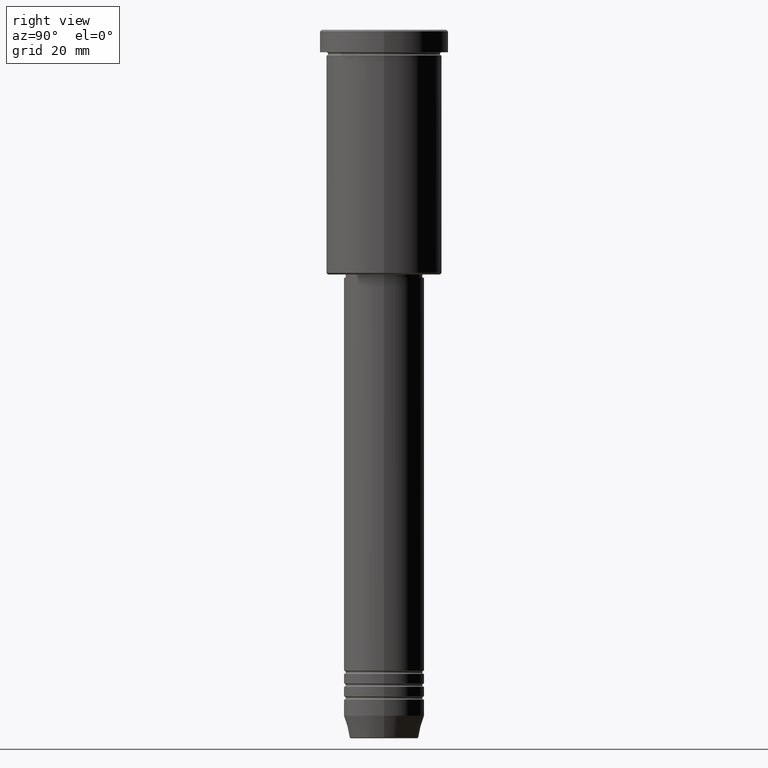
[diagram: clean part render]
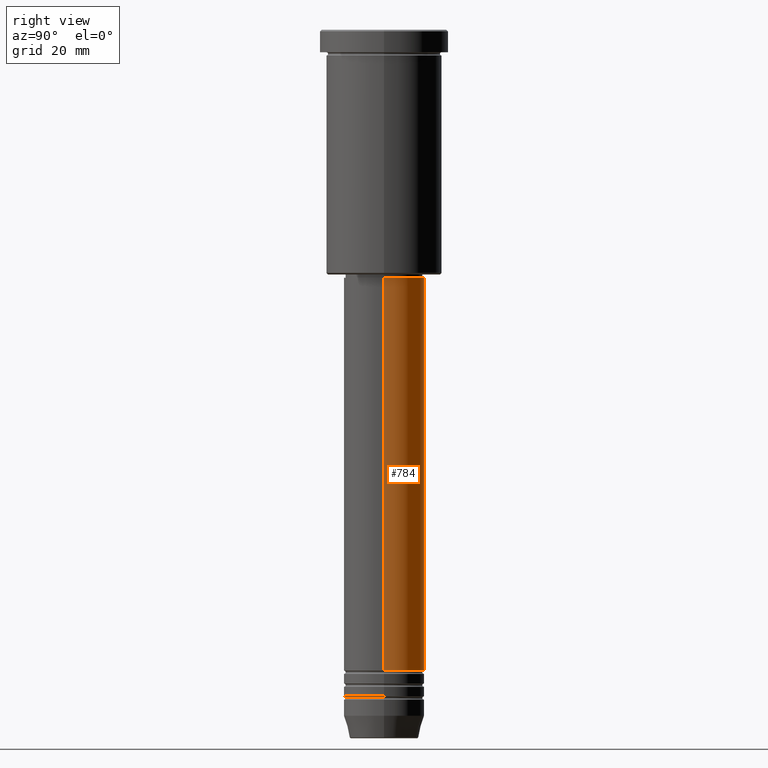
[diagram: same view with one face highlighted and labeled with its STEP entity id]
A machine part, right view. The second image highlights one B-rep face of the part: STEP entity #784.
In plain terms, the highlighted cylindrical surface (partial cylindrical patch) has radius 12.5 mm, axis along (-0, -0, 1).
Its self-contained STEP definition (entity closure, byte-faithful):
#3 = AXIS2_PLACEMENT_3D ( 'NONE', #974, #522, #895 ) ;
#12 = EDGE_CURVE ( 'NONE', #387, #977, #814, .T. ) ;
#19 = DIRECTION ( 'NONE',  ( -0.000000000000000000, -0.000000000000000000, 1.000000000000000000 ) ) ;
#59 = DIRECTION ( 'NONE',  ( -0.000000000000000000, -0.000000000000000000, 1.000000000000000000 ) ) ;
#103 = EDGE_CURVE ( 'NONE', #387, #259, #805, .T. ) ;
#116 = EDGE_CURVE ( 'NONE', #259, #557, #1130, .T. ) ;
#132 = FACE_OUTER_BOUND ( 'NONE', #323, .T. ) ;
#201 = CARTESIAN_POINT ( 'NONE',  ( -12.50000000000000000, 1.530808498934191521E-15, 0.000000000000000000 ) ) ;
#259 = VERTEX_POINT ( 'NONE', #326 ) ;
#275 = AXIS2_PLACEMENT_3D ( 'NONE', #957, #59, #1061 ) ;
#323 = EDGE_LOOP ( 'NONE', ( #936, #646, #469, #395 ) ) ;
#326 = CARTESIAN_POINT ( 'NONE',  ( 12.50000000000000000, 0.000000000000000000, -77.00000000000004263 ) ) ;
#387 = VERTEX_POINT ( 'NONE', #689 ) ;
#395 = ORIENTED_EDGE ( 'NONE', *, *, #103, .F. ) ;
#400 = CARTESIAN_POINT ( 'NONE',  ( 0.000000000000000000, 0.000000000000000000, -77.00000000000004263 ) ) ;
#432 = CYLINDRICAL_SURFACE ( 'NONE', #275, 12.50000000000000000 ) ;
#469 = ORIENTED_EDGE ( 'NONE', *, *, #116, .F. ) ;
#522 = DIRECTION ( 'NONE',  ( -0.000000000000000000, -0.000000000000000000, 1.000000000000000000 ) ) ;
#557 = VERTEX_POINT ( 'NONE', #630 ) ;
#566 = DIRECTION ( 'NONE',  ( -0.000000000000000000, -0.000000000000000000, 1.000000000000000000 ) ) ;
#585 = CARTESIAN_POINT ( 'NONE',  ( 12.50000000000000000, 0.000000000000000000, 0.000000000000000000 ) ) ;
#626 = CARTESIAN_POINT ( 'NONE',  ( -12.50000000000000000, 1.530808498934191521E-15, -198.9999999999999716 ) ) ;
#630 = CARTESIAN_POINT ( 'NONE',  ( -12.50000000000000000, 1.530808498934191521E-15, -77.00000000000004263 ) ) ;
#646 = ORIENTED_EDGE ( 'NONE', *, *, #687, .T. ) ;
#655 = DIRECTION ( 'NONE',  ( 1.000000000000000000, 0.000000000000000000, 0.000000000000000000 ) ) ;
#659 = LINE ( 'NONE', #201, #1015 ) ;
#687 = EDGE_CURVE ( 'NONE', #977, #557, #659, .T. ) ;
#689 = CARTESIAN_POINT ( 'NONE',  ( 12.50000000000000000, 0.000000000000000000, -198.9999999999999716 ) ) ;
#771 = DIRECTION ( 'NONE',  ( -0.000000000000000000, -0.000000000000000000, 1.000000000000000000 ) ) ;
#784 = ADVANCED_FACE ( 'NONE', ( #132 ), #432, .T. ) ;
#805 = LINE ( 'NONE', #585, #1174 ) ;
#814 = CIRCLE ( 'NONE', #3, 12.50000000000000000 ) ;
#830 = AXIS2_PLACEMENT_3D ( 'NONE', #400, #771, #655 ) ;
#895 = DIRECTION ( 'NONE',  ( 1.000000000000000000, 0.000000000000000000, 0.000000000000000000 ) ) ;
#936 = ORIENTED_EDGE ( 'NONE', *, *, #12, .T. ) ;
#957 = CARTESIAN_POINT ( 'NONE',  ( 0.000000000000000000, 0.000000000000000000, 0.000000000000000000 ) ) ;
#974 = CARTESIAN_POINT ( 'NONE',  ( 0.000000000000000000, 0.000000000000000000, -198.9999999999999716 ) ) ;
#977 = VERTEX_POINT ( 'NONE', #626 ) ;
#1015 = VECTOR ( 'NONE', #566, 1000.000000000000000 ) ;
#1061 = DIRECTION ( 'NONE',  ( 1.000000000000000000, 0.000000000000000000, 0.000000000000000000 ) ) ;
#1130 = CIRCLE ( 'NONE', #830, 12.50000000000000000 ) ;
#1174 = VECTOR ( 'NONE', #19, 1000.000000000000000 ) ;